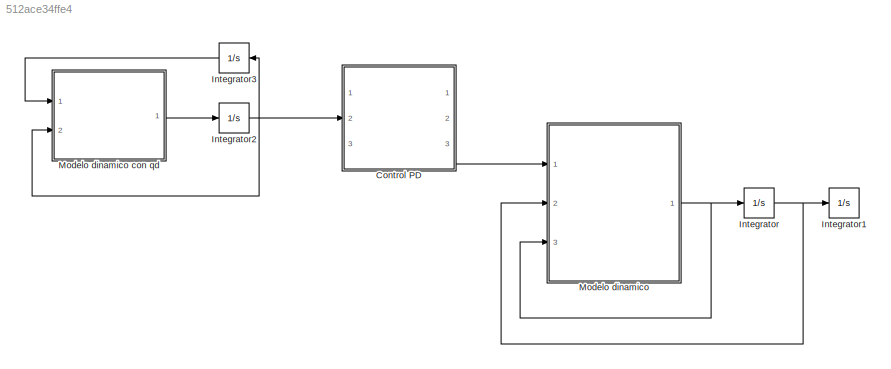
MODEL slx_512ace34ffe4
KIND model
CONFIG AbsTol = auto
CONFIG EnableMultiTasking = off
CONFIG FixedStep = auto
CONFIG MaxStep = auto
CONFIG MinStep = auto
CONFIG RelTol = 1e-3
CONFIG SampleTimeConstraint = Unconstrained
CONFIG SolverName = VariableStepAuto
CONFIG StartTime = 0.0
CONFIG StopTime = 10.0
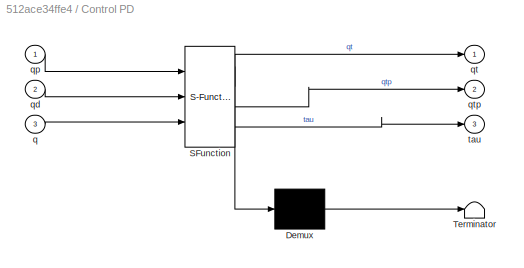
BLOCK [SubSystem] Control PD
  ErrorFcn = Stateflow.Translate.translate
  PermitHierarchicalResolution = ExplicitOnly
  Ports = [3, 3]
  RequestExecContextInheritance = off
  SFBlockType = MATLAB Function
  TreatAsAtomicUnit = on
BLOCK [Demux] Control PD/ Demux 
  Outputs = 1
  Ports = [1, 1]
BLOCK [S-Function] Control PD/ SFunction 
  EnableBusSupport = off
  FunctionName = sf_sfun
  PortCounts = [3 4]
  Ports = [3, 4]
  SFcnIsStateOwnerBlock = off
  SFunctionDeploymentMode = off
  Tag = Stateflow S-Function 1
BLOCK [Terminator] Control PD/ Terminator 
BLOCK [Inport] Control PD/q
  Port = 3
BLOCK [Inport] Control PD/qd
  Port = 2
BLOCK [Inport] Control PD/qp
BLOCK [Outport] Control PD/qt
BLOCK [Outport] Control PD/qtp
  Port = 2
BLOCK [Outport] Control PD/tau
  Port = 3
BLOCK [Integrator] Integrator
  Ports = [1, 1]
BLOCK [Integrator] Integrator1
  Ports = [1, 1]
BLOCK [Integrator] Integrator2
  Ports = [1, 1]
BLOCK [Integrator] Integrator3
  NameLocation = top
  Ports = [1, 1]
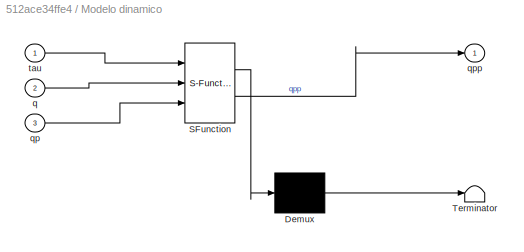
BLOCK [SubSystem] Modelo dinamico
  ErrorFcn = Stateflow.Translate.translate
  PermitHierarchicalResolution = ExplicitOnly
  Ports = [3, 1]
  RequestExecContextInheritance = off
  SFBlockType = MATLAB Function
  TreatAsAtomicUnit = on
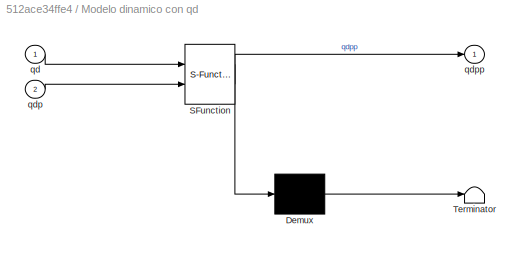
BLOCK [SubSystem] Modelo dinamico con qd
  ErrorFcn = Stateflow.Translate.translate
  PermitHierarchicalResolution = ExplicitOnly
  Ports = [2, 1]
  RequestExecContextInheritance = off
  SFBlockType = MATLAB Function
  TreatAsAtomicUnit = on
BLOCK [Demux] Modelo dinamico con qd/ Demux 
  Outputs = 1
  Ports = [1, 1]
BLOCK [S-Function] Modelo dinamico con qd/ SFunction 
  EnableBusSupport = off
  FunctionName = sf_sfun
  PortCounts = [2 2]
  Ports = [2, 2]
  SFcnIsStateOwnerBlock = off
  SFunctionDeploymentMode = off
  Tag = Stateflow S-Function 3
BLOCK [Terminator] Modelo dinamico con qd/ Terminator 
BLOCK [Inport] Modelo dinamico con qd/qd
BLOCK [Inport] Modelo dinamico con qd/qdp
  Port = 2
BLOCK [Outport] Modelo dinamico con qd/qdpp
BLOCK [Demux] Modelo dinamico/ Demux 
  Outputs = 1
  Ports = [1, 1]
BLOCK [S-Function] Modelo dinamico/ SFunction 
  EnableBusSupport = off
  FunctionName = sf_sfun
  PortCounts = [3 2]
  Ports = [3, 2]
  SFcnIsStateOwnerBlock = off
  SFunctionDeploymentMode = off
  Tag = Stateflow S-Function 2
BLOCK [Terminator] Modelo dinamico/ Terminator 
BLOCK [Inport] Modelo dinamico/q
  Port = 2
BLOCK [Inport] Modelo dinamico/qp
  Port = 3
BLOCK [Outport] Modelo dinamico/qpp
BLOCK [Inport] Modelo dinamico/tau
LINE Control PD:3 -> Modelo dinamico:1
NET Integrator2:1 -> Control PD:2, Integrator3:1, Modelo dinamico con qd:2
LINE Integrator3:1 -> Modelo dinamico con qd:1
NET Integrator:1 -> Integrator1:1, Modelo dinamico:2
LINE Modelo dinamico con qd:1 -> Integrator2:1
NET Modelo dinamico:1 -> Integrator:1, Modelo dinamico:3
note: NET lines group one-source signal fan-out (src -> all destinations, sorted); 1:1 wires keep LINE
CHART Control PD states=1 transitions=1
  STATE_LABEL 'eML_blk_kernel()'
  STATE_LABEL 'SCRIPT:\nfunction [qt, qtp, tau]  = fcn(qp,qd,q)\nkp=0.25;\nmgl=1;\nqd=pi/2;\nkv=0.5;\n\nqt= qd -q;\ng = mgl*sin(q);\n\ntau = kp*qt + kv*qp + g;\n'
CHART Modelo dinamico states=1 transitions=1
  STATE_LABEL 'eML_blk_kernel()'
  STATE_LABEL 'SCRIPT:\n\nfunction qpp = fcn(tau, q, qp)\n\nml2 = 1;\nmgl = 1;\n\nqpp = (tau-mgl*sin(q))/ml2;'
CHART Modelo dinamico con qd states=1 transitions=1
  STATE_LABEL 'eML_blk_kernel()'
  STATE_LABEL 'SCRIPT:\nfunction qdpp = fcn(qd, qdp)\n\nJ=5;\nml2=1;\n\nJl=J+ml2;\nM=Jl;\n\nqdpp = 0;\n'
CHART  states=0 transitions=0
CHART  states=0 transitions=0
CHART  states=0 transitions=0
